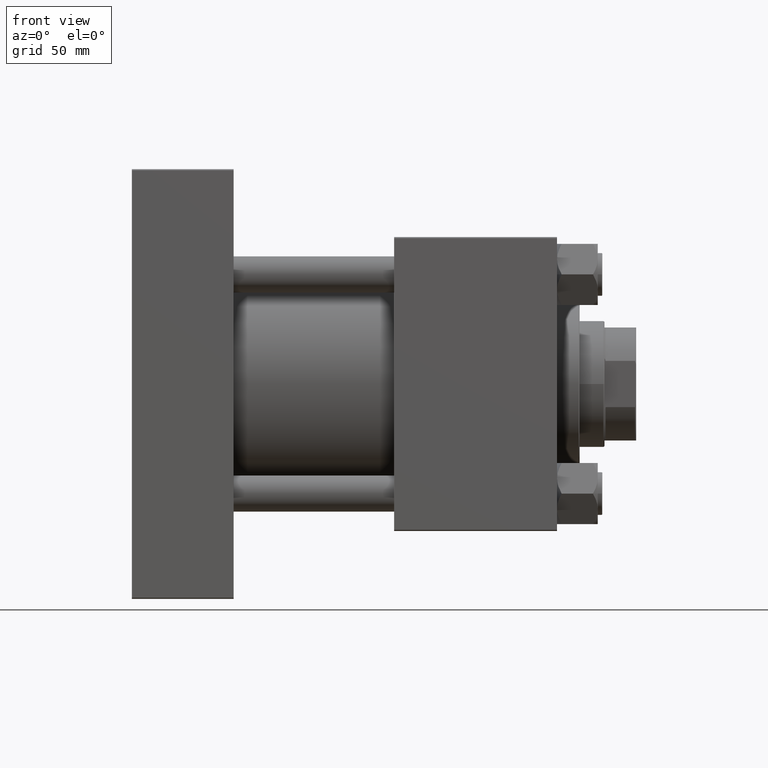
[diagram: clean part render]
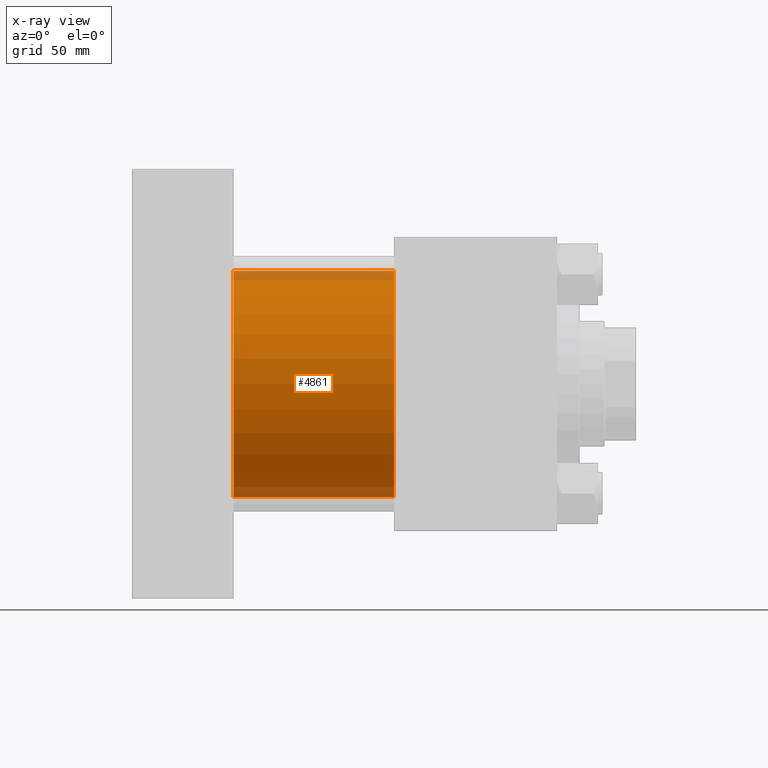
[diagram: x-ray — body ghosted, one internal face saturated and labeled with its STEP entity id]
A machine part, front view, then the same camera in x-ray: the body is ghosted and one INTERNAL B-rep face — a face not visible from any outside direction — is saturated and labeled: STEP entity #4861.
In plain terms, the highlighted cylindrical surface (partial cylindrical patch) has radius 50 mm, axis along (-1, -0, -0).
Its self-contained STEP definition (entity closure, byte-faithful):
#4663 = VECTOR ( 'NONE', #27971, 1000.000000000000000 ) ;
#4861 = ADVANCED_FACE ( 'NONE', ( #30480 ), #27548, .F. ) ;
#5258 = DIRECTION ( 'NONE',  ( 1.000000000000000000, 0.000000000000000000, 0.000000000000000000 ) ) ;
#6008 = CARTESIAN_POINT ( 'NONE',  ( 115.9999999999999858, -2.602085213965210642E-15, 50.00000000000000000 ) ) ;
#6289 = DIRECTION ( 'NONE',  ( -1.000000000000000000, -0.000000000000000000, -0.000000000000000000 ) ) ;
#6379 = EDGE_CURVE ( 'NONE', #21868, #36094, #43382, .T. ) ;
#6472 = DIRECTION ( 'NONE',  ( 1.000000000000000000, 0.000000000000000000, 0.000000000000000000 ) ) ;
#7745 = AXIS2_PLACEMENT_3D ( 'NONE', #9679, #6472, #42363 ) ;
#7768 = LINE ( 'NONE', #31936, #43914 ) ;
#9679 = CARTESIAN_POINT ( 'NONE',  ( 45.00000000000000000, -2.602085213965210642E-15, 0.000000000000000000 ) ) ;
#10188 = AXIS2_PLACEMENT_3D ( 'NONE', #45654, #5258, #21468 ) ;
#10698 = VERTEX_POINT ( 'NONE', #49776 ) ;
#10952 = EDGE_CURVE ( 'NONE', #21225, #10698, #7768, .T. ) ;
#19468 = CARTESIAN_POINT ( 'NONE',  ( 115.9999999999999858, 3.521148781771555838E-15, -50.00000000000000000 ) ) ;
#21072 = CARTESIAN_POINT ( 'NONE',  ( 45.00000000000000000, 3.521148781771555838E-15, -50.00000000000000000 ) ) ;
#21225 = VERTEX_POINT ( 'NONE', #6008 ) ;
#21447 = CARTESIAN_POINT ( 'NONE',  ( 115.9999999999999858, 3.521148781771555838E-15, -50.00000000000000000 ) ) ;
#21468 = DIRECTION ( 'NONE',  ( 0.000000000000000000, 0.000000000000000000, -1.000000000000000000 ) ) ;
#21868 = VERTEX_POINT ( 'NONE', #21447 ) ;
#22132 = CIRCLE ( 'NONE', #7745, 50.00000000000000000 ) ;
#24602 = CIRCLE ( 'NONE', #10188, 50.00000000000000000 ) ;
#27548 = CYLINDRICAL_SURFACE ( 'NONE', #43805, 50.00000000000000000 ) ;
#27971 = DIRECTION ( 'NONE',  ( -1.000000000000000000, -0.000000000000000000, -0.000000000000000000 ) ) ;
#30480 = FACE_OUTER_BOUND ( 'NONE', #44622, .T. ) ;
#30997 = CARTESIAN_POINT ( 'NONE',  ( 115.9999999999999858, -2.602085213965210642E-15, 0.000000000000000000 ) ) ;
#31754 = ORIENTED_EDGE ( 'NONE', *, *, #51300, .F. ) ;
#31936 = CARTESIAN_POINT ( 'NONE',  ( 115.9999999999999858, -2.602085213965210642E-15, 50.00000000000000000 ) ) ;
#33281 = ORIENTED_EDGE ( 'NONE', *, *, #48628, .T. ) ;
#36094 = VERTEX_POINT ( 'NONE', #21072 ) ;
#42363 = DIRECTION ( 'NONE',  ( 0.000000000000000000, 0.000000000000000000, -1.000000000000000000 ) ) ;
#43382 = LINE ( 'NONE', #19468, #4663 ) ;
#43805 = AXIS2_PLACEMENT_3D ( 'NONE', #30997, #6289, #46688 ) ;
#43914 = VECTOR ( 'NONE', #48935, 1000.000000000000000 ) ;
#44622 = EDGE_LOOP ( 'NONE', ( #33281, #46515, #31754, #52271 ) ) ;
#45654 = CARTESIAN_POINT ( 'NONE',  ( 115.9999999999999858, -2.602085213965210642E-15, 0.000000000000000000 ) ) ;
#46515 = ORIENTED_EDGE ( 'NONE', *, *, #6379, .T. ) ;
#46688 = DIRECTION ( 'NONE',  ( 0.000000000000000000, 0.000000000000000000, 1.000000000000000000 ) ) ;
#48628 = EDGE_CURVE ( 'NONE', #21225, #21868, #24602, .T. ) ;
#48935 = DIRECTION ( 'NONE',  ( -1.000000000000000000, -0.000000000000000000, -0.000000000000000000 ) ) ;
#49776 = CARTESIAN_POINT ( 'NONE',  ( 45.00000000000000000, -2.602085213965210642E-15, 50.00000000000000000 ) ) ;
#51300 = EDGE_CURVE ( 'NONE', #10698, #36094, #22132, .T. ) ;
#52271 = ORIENTED_EDGE ( 'NONE', *, *, #10952, .F. ) ;